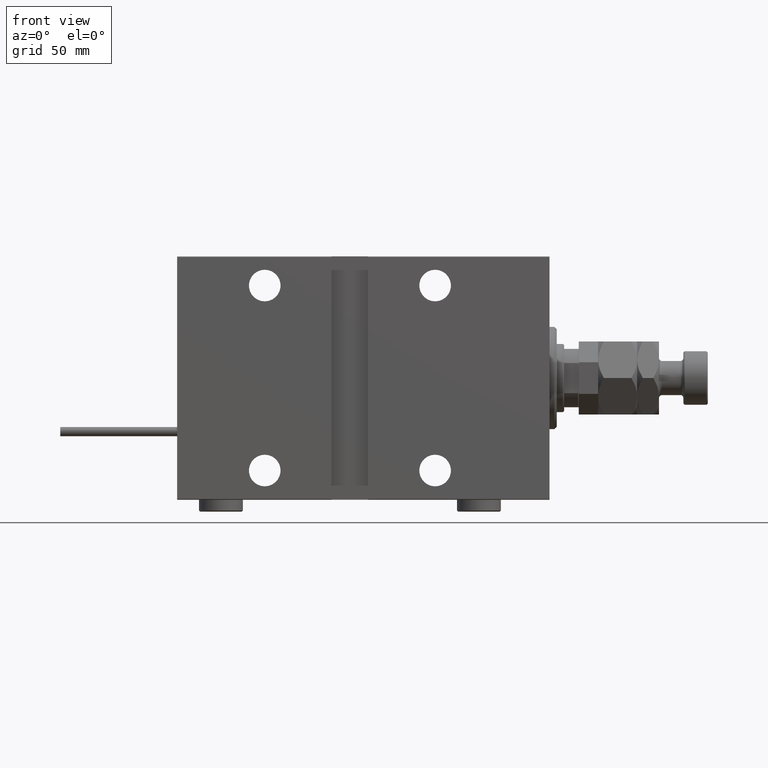
[diagram: clean part render]
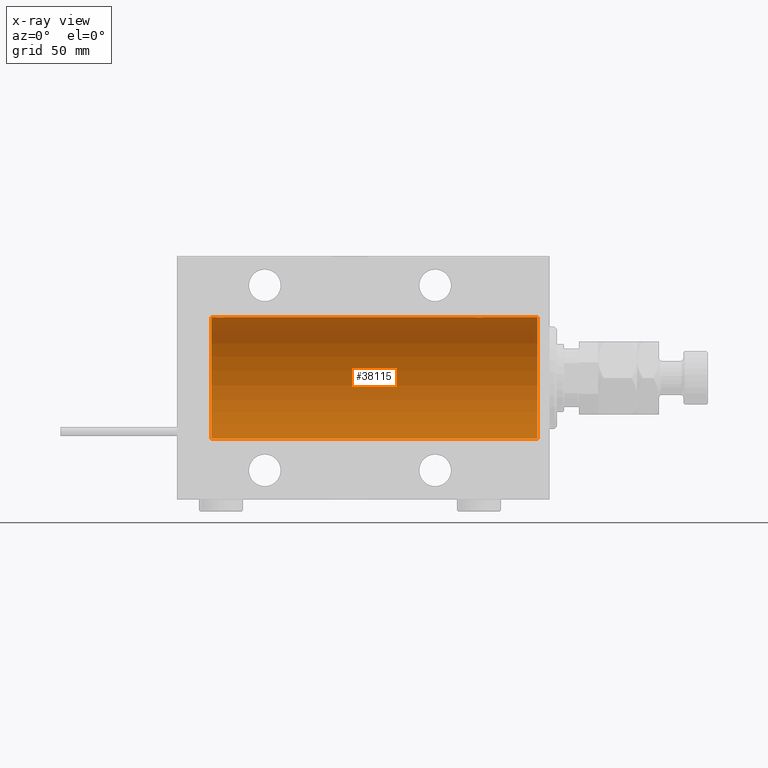
[diagram: x-ray — body ghosted, one internal face saturated and labeled with its STEP entity id]
A machine part, front view, then the same camera in x-ray: the body is ghosted and one INTERNAL B-rep face — a face not visible from any outside direction — is saturated and labeled: STEP entity #38115.
In plain terms, the highlighted cylindrical surface (partial cylindrical patch) has radius 25 mm, axis along (1, 0, -0).
Its self-contained STEP definition (entity closure, byte-faithful):
#744 = CARTESIAN_POINT ( 'NONE',  ( 29.16323589638542302, -2.500125740978195843, 24.87467329022545215 ) ) ;
#1243 = EDGE_LOOP ( 'NONE', ( #36611, #39696, #44153, #47120, #29771, #17389, #47085, #19458 ) ) ;
#1544 = CARTESIAN_POINT ( 'NONE',  ( 28.83293504821939734, -2.499872792855082793, 24.87469871246083031 ) ) ;
#1669 = VECTOR ( 'NONE', #15223, 1000.000000000000000 ) ;
#1812 = CARTESIAN_POINT ( 'NONE',  ( 30.65121133559111755, -1.884161199660622454, 24.92916496727982434 ) ) ;
#1930 = VECTOR ( 'NONE', #37958, 1000.000000000000000 ) ;
#2122 = CARTESIAN_POINT ( 'NONE',  ( 132.5000000000000000, -0.1631750940176186493, 25.00000000000001066 ) ) ;
#2387 = CARTESIAN_POINT ( 'NONE',  ( 134.1921165759419239, -2.371528299825747421, 24.88734287464370709 ) ) ;
#3184 = CARTESIAN_POINT ( 'NONE',  ( 137.4999999999999716, -0.3305063766663748903, 24.99999999999999289 ) ) ;
#3713 = CARTESIAN_POINT ( 'NONE',  ( 26.50000000000000711, -0.1631750940176204812, 25.00000000000000711 ) ) ;
#4842 = AXIS2_PLACEMENT_3D ( 'NONE', #30955, #39269, #7106 ) ;
#5025 = CARTESIAN_POINT ( 'NONE',  ( 28.35095609830903385, -2.419770561643910245, 24.88263927071751169 ) ) ;
#5064 = CARTESIAN_POINT ( 'NONE',  ( 133.1158761721353301, -1.651251241585103724, 24.94567559498349141 ) ) ;
#5289 = CARTESIAN_POINT ( 'NONE',  ( 30.98538033717094464, -1.528152964861315244, 24.95362559291378801 ) ) ;
#5433 = EDGE_CURVE ( 'NONE', #26948, #40290, #52471, .T. ) ;
#5835 = CARTESIAN_POINT ( 'NONE',  ( 30.52256774340189338, -1.989585286700249256, 24.92087098724766747 ) ) ;
#7021 = CYLINDRICAL_SURFACE ( 'NONE', #23906, 25.00000000000000000 ) ;
#7106 = DIRECTION ( 'NONE',  ( 0.000000000000000000, 0.000000000000000000, 1.000000000000000000 ) ) ;
#7200 = CARTESIAN_POINT ( 'NONE',  ( 137.4334935523974650, -0.6588655613945811895, 24.99312727339969697 ) ) ;
#9095 = CARTESIAN_POINT ( 'NONE',  ( 133.0125018416559328, -1.525407911884356205, 24.95379469572361586 ) ) ;
#9285 = EDGE_CURVE ( 'NONE', #32573, #15623, #40480, .T. ) ;
#9611 = CARTESIAN_POINT ( 'NONE',  ( 132.5158215994234752, -0.3254210271412208977, 24.99840249400844527 ) ) ;
#9711 = DIRECTION ( 'NONE',  ( -1.000000000000000000, -0.000000000000000000, -0.000000000000000000 ) ) ;
#10827 = VERTEX_POINT ( 'NONE', #32580 ) ;
#10981 = LINE ( 'NONE', #46431, #39452 ) ;
#12026 = CARTESIAN_POINT ( 'NONE',  ( 27.74616804575498108, -2.169003991399871989, 24.90589728951138326 ) ) ;
#13120 = CARTESIAN_POINT ( 'NONE',  ( 132.7523974898044798, -1.106703319666880958, 24.97594585958023217 ) ) ;
#14830 = CARTESIAN_POINT ( 'NONE',  ( 5.000000000000004441, 0.000000000000000000, 0.000000000000000000 ) ) ;
#14905 = VERTEX_POINT ( 'NONE', #46154 ) ;
#15084 = DIRECTION ( 'NONE',  ( -1.000000000000000000, -0.000000000000000000, -0.000000000000000000 ) ) ;
#15223 = DIRECTION ( 'NONE',  ( -1.000000000000000000, -0.000000000000000000, -0.000000000000000000 ) ) ;
#15249 = CARTESIAN_POINT ( 'NONE',  ( 136.5225677434018792, -1.989585286700252809, 24.92087098724766747 ) ) ;
#15623 = VERTEX_POINT ( 'NONE', #43588 ) ;
#15697 = DIRECTION ( 'NONE',  ( -1.000000000000000000, -0.000000000000000000, -0.000000000000000000 ) ) ;
#16033 = CARTESIAN_POINT ( 'NONE',  ( 26.75239748980449050, -1.106703319666882956, 24.97594585958023572 ) ) ;
#16819 = CARTESIAN_POINT ( 'NONE',  ( 26.82988709719075970, -1.252049606094339351, 24.96900299967627390 ) ) ;
#16960 = EDGE_CURVE ( 'NONE', #14905, #15623, #10981, .T. ) ;
#17070 = EDGE_CURVE ( 'NONE', #26948, #10827, #40243, .T. ) ;
#17389 = ORIENTED_EDGE ( 'NONE', *, *, #44361, .F. ) ;
#17885 = CARTESIAN_POINT ( 'NONE',  ( 29.32596570039459394, -2.484007091859766092, 24.87630842367763506 ) ) ;
#18321 = EDGE_CURVE ( 'NONE', #45668, #14905, #45064, .T. ) ;
#18454 = CARTESIAN_POINT ( 'NONE',  ( 134.3509560983090694, -2.419770561643906248, 24.88263927071751169 ) ) ;
#18720 = CARTESIAN_POINT ( 'NONE',  ( 134.8329350482193831, -2.499872792855079240, 24.87469871246083031 ) ) ;
#19458 = ORIENTED_EDGE ( 'NONE', *, *, #16960, .F. ) ;
#20849 = CARTESIAN_POINT ( 'NONE',  ( 26.62784030591392437, -0.8058335233485459659, 24.98746277938383287 ) ) ;
#21402 = CARTESIAN_POINT ( 'NONE',  ( 133.4746381775692043, -1.987446652080256948, 24.92104239223420592 ) ) ;
#21630 = CARTESIAN_POINT ( 'NONE',  ( 31.43349355239747567, -0.6588655613945917366, 24.99312727339970053 ) ) ;
#21845 = VECTOR ( 'NONE', #15697, 1000.000000000000000 ) ;
#21904 = CARTESIAN_POINT ( 'NONE',  ( 29.80435660916301899, -2.372734907014176553, 24.88722742718433878 ) ) ;
#22404 = CARTESIAN_POINT ( 'NONE',  ( 139.0000000000000000, 0.000000000000000000, 25.00000000000000000 ) ) ;
#23009 = CARTESIAN_POINT ( 'NONE',  ( 136.8818595414864205, -1.653834020452942477, 24.94550385189585029 ) ) ;
#23533 = EDGE_CURVE ( 'NONE', #45668, #49240, #40340, .T. ) ;
#23787 = CARTESIAN_POINT ( 'NONE',  ( 133.8896320349113580, -2.245863995402900049, 24.89899750494197050 ) ) ;
#23906 = AXIS2_PLACEMENT_3D ( 'NONE', #26846, #15084, #44005 ) ;
#24332 = CARTESIAN_POINT ( 'NONE',  ( 26.51582159942343608, -0.3254210271412222300, 24.99840249400844883 ) ) ;
#25087 = EDGE_CURVE ( 'NONE', #49240, #40290, #41465, .T. ) ;
#25120 = CARTESIAN_POINT ( 'NONE',  ( 31.50000000000000000, -6.390602579065537931E-15, 25.00000000000000000 ) ) ;
#25950 = CARTESIAN_POINT ( 'NONE',  ( 132.5798509077907283, -0.6480119923854213981, 24.99212088949391131 ) ) ;
#26030 = CARTESIAN_POINT ( 'NONE',  ( 139.0000000000000000, 3.061616997868383043E-15, -25.00000000000000000 ) ) ;
#26158 = CARTESIAN_POINT ( 'NONE',  ( 26.50000000000000355, -1.940558383798427991E-23, 25.00000000000000000 ) ) ;
#26189 = CARTESIAN_POINT ( 'NONE',  ( 31.24606379094066000, -1.109818057797419932, 24.97580694515541921 ) ) ;
#26846 = CARTESIAN_POINT ( 'NONE',  ( 139.0000000000000000, 0.000000000000000000, 0.000000000000000000 ) ) ;
#26948 = VERTEX_POINT ( 'NONE', #26158 ) ;
#27033 = CARTESIAN_POINT ( 'NONE',  ( 136.1072384583841028, -2.247417070759893942, 24.89885693081946627 ) ) ;
#27807 = CARTESIAN_POINT ( 'NONE',  ( 136.9853803371709375, -1.528152964861297258, 24.95362559291378446 ) ) ;
#28345 = CARTESIAN_POINT ( 'NONE',  ( 27.88963203491136156, -2.245863995402901381, 24.89899750494197050 ) ) ;
#29402 = CARTESIAN_POINT ( 'NONE',  ( 28.19211657594194520, -2.371528299825748309, 24.88734287464370709 ) ) ;
#29771 = ORIENTED_EDGE ( 'NONE', *, *, #17070, .T. ) ;
#30200 = CARTESIAN_POINT ( 'NONE',  ( 31.49999999999997158, -0.3305063766663704494, 25.00000000000000000 ) ) ;
#30626 = DIRECTION ( 'NONE',  ( -1.000000000000000000, 0.000000000000000000, 0.000000000000000000 ) ) ;
#30781 = CARTESIAN_POINT ( 'NONE',  ( 137.2460637909406955, -1.109818057797409718, 24.97580694515542632 ) ) ;
#30955 = CARTESIAN_POINT ( 'NONE',  ( 139.0000000000000000, 0.000000000000000000, 0.000000000000000000 ) ) ;
#31043 = CARTESIAN_POINT ( 'NONE',  ( 134.6705231988572962, -2.483544361357268304, 24.87635491893501793 ) ) ;
#31569 = CARTESIAN_POINT ( 'NONE',  ( 135.1632358963854301, -2.500125740978193178, 24.87467329022544504 ) ) ;
#31658 = FACE_OUTER_BOUND ( 'NONE', #1243, .T. ) ;
#32573 = VERTEX_POINT ( 'NONE', #49684 ) ;
#32580 = CARTESIAN_POINT ( 'NONE',  ( 31.50000000000000000, -6.390602579065537931E-15, 25.00000000000000000 ) ) ;
#32820 = CARTESIAN_POINT ( 'NONE',  ( 139.0000000000000000, 3.061616997868383043E-15, -25.00000000000000000 ) ) ;
#33166 = CARTESIAN_POINT ( 'NONE',  ( 27.01250184165601453, -1.525407911884366863, 24.95379469572361941 ) ) ;
#33467 = CARTESIAN_POINT ( 'NONE',  ( 132.6278403059139634, -0.8058335233485443005, 24.98746277938383287 ) ) ;
#33941 = LINE ( 'NONE', #22404, #1930 ) ;
#34620 = AXIS2_PLACEMENT_3D ( 'NONE', #14830, #30626, #51836 ) ;
#35061 = CARTESIAN_POINT ( 'NONE',  ( 135.3259657003945620, -2.484007091859763872, 24.87630842367762796 ) ) ;
#35845 = CARTESIAN_POINT ( 'NONE',  ( 137.5000000000000000, 1.404322005998729010E-15, 25.00000000000000000 ) ) ;
#36611 = ORIENTED_EDGE ( 'NONE', *, *, #18321, .F. ) ;
#37326 = CARTESIAN_POINT ( 'NONE',  ( 5.000000000000004441, 0.000000000000000000, 25.00000000000000000 ) ) ;
#37749 = CARTESIAN_POINT ( 'NONE',  ( 133.7461680457549846, -2.169003991399866216, 24.90589728951138682 ) ) ;
#37958 = DIRECTION ( 'NONE',  ( -1.000000000000000000, -0.000000000000000000, -0.000000000000000000 ) ) ;
#38115 = ADVANCED_FACE ( 'NONE', ( #31658 ), #7021, .F. ) ;
#38256 = CARTESIAN_POINT ( 'NONE',  ( 31.16827641493957657, -1.255214705003185438, 24.96884293994578385 ) ) ;
#39269 = DIRECTION ( 'NONE',  ( -1.000000000000000000, 0.000000000000000000, 0.000000000000000000 ) ) ;
#39452 = VECTOR ( 'NONE', #9711, 1000.000000000000000 ) ;
#39696 = ORIENTED_EDGE ( 'NONE', *, *, #23533, .T. ) ;
#39893 = CARTESIAN_POINT ( 'NONE',  ( 135.8043566091630510, -2.372734907014173000, 24.88722742718433878 ) ) ;
#40243 = B_SPLINE_CURVE_WITH_KNOTS ( 'NONE', 3,
 ( #40418, #3713, #24332, #52787, #20849, #16033, #16819, #33166, #48745, #44986, #49548, #12026, #28345, #29402, #5025, #45504, #1544, #744, #17885, #50607, #21904, #46301, #42556, #5835, #1812, #42011, #5289, #38256, #26189, #21630, #30200, #25120 ),
 .UNSPECIFIED., .F., .F.,
 ( 4, 2, 2, 2, 2, 2, 2, 2, 2, 2, 2, 2, 2, 2, 2, 4 ),
 ( 0.007821024441662254717, 0.008309723826317859385, 0.008798423210973464054, 0.009287122595629068722, 0.009775821980284673390, 0.01026452136494027806, 0.01075322074959588099, 0.01124192013425148566, 0.01173061951890709033, 0.01221931890356269500, 0.01270801828821829967, 0.01319671767287390260, 0.01368541705752950727, 0.01417411644218511194, 0.01466281582684071660, 0.01564021459615192594 ),
 .UNSPECIFIED. ) ;
#40290 = VERTEX_POINT ( 'NONE', #37326 ) ;
#40340 = LINE ( 'NONE', #32820, #21845 ) ;
#40418 = CARTESIAN_POINT ( 'NONE',  ( 26.50000000000000355, -1.940558383798427991E-23, 25.00000000000000000 ) ) ;
#40480 = B_SPLINE_CURVE_WITH_KNOTS ( 'NONE', 3,
 ( #46338, #2122, #9611, #25950, #33467, #13120, #45815, #9095, #5064, #41787, #21402, #37749, #23787, #2387, #18454, #31043, #18720, #31569, #35061, #51729, #39893, #27033, #47693, #15249, #43123, #23009, #27807, #52243, #30781, #7200, #3184, #35845 ),
 .UNSPECIFIED., .F., .F.,
 ( 4, 2, 2, 2, 2, 2, 2, 2, 2, 2, 2, 2, 2, 2, 2, 4 ),
 ( 0.007821024441662296350, 0.008309723826317906223, 0.008798423210973516095, 0.009287122595629124233, 0.009775821980284732371, 0.01026452136494034224, 0.01075322074959595212, 0.01124192013425156025, 0.01173061951890716839, 0.01221931890356277826, 0.01270801828821838814, 0.01319671767287399627, 0.01368541705752960788, 0.01417411644218521602, 0.01466281582684082589, 0.01564021459615201268 ),
 .UNSPECIFIED. ) ;
#41465 = CIRCLE ( 'NONE', #34620, 25.00000000000000000 ) ;
#41787 = CARTESIAN_POINT ( 'NONE',  ( 133.3461666385066167, -1.881857718844717642, 24.92933960374833546 ) ) ;
#42011 = CARTESIAN_POINT ( 'NONE',  ( 30.88185954148645251, -1.653834020452943809, 24.94550385189585029 ) ) ;
#42556 = CARTESIAN_POINT ( 'NONE',  ( 30.25084023924054932, -2.170728182476723500, 24.90574631553725027 ) ) ;
#43123 = CARTESIAN_POINT ( 'NONE',  ( 136.6512113355911708, -1.884161199660621344, 24.92916496727982789 ) ) ;
#43588 = CARTESIAN_POINT ( 'NONE',  ( 137.5000000000000000, 1.404322005998729010E-15, 25.00000000000000000 ) ) ;
#44005 = DIRECTION ( 'NONE',  ( 0.000000000000000000, 0.000000000000000000, 1.000000000000000000 ) ) ;
#44153 = ORIENTED_EDGE ( 'NONE', *, *, #25087, .T. ) ;
#44361 = EDGE_CURVE ( 'NONE', #32573, #10827, #33941, .T. ) ;
#44986 = CARTESIAN_POINT ( 'NONE',  ( 27.34616663850662377, -1.881857718844717642, 24.92933960374833902 ) ) ;
#45064 = CIRCLE ( 'NONE', #4842, 25.00000000000000000 ) ;
#45504 = CARTESIAN_POINT ( 'NONE',  ( 28.67052319885730682, -2.483544361357271857, 24.87635491893501793 ) ) ;
#45668 = VERTEX_POINT ( 'NONE', #26030 ) ;
#45815 = CARTESIAN_POINT ( 'NONE',  ( 132.8298870971907490, -1.252049606094326695, 24.96900299967627390 ) ) ;
#46154 = CARTESIAN_POINT ( 'NONE',  ( 139.0000000000000000, 0.000000000000000000, 25.00000000000000000 ) ) ;
#46301 = CARTESIAN_POINT ( 'NONE',  ( 30.10723845838409929, -2.247417070759899271, 24.89885693081946272 ) ) ;
#46338 = CARTESIAN_POINT ( 'NONE',  ( 132.5000000000000000, -1.941505016884693205E-23, 25.00000000000000000 ) ) ;
#46431 = CARTESIAN_POINT ( 'NONE',  ( 139.0000000000000000, 0.000000000000000000, 25.00000000000000000 ) ) ;
#47085 = ORIENTED_EDGE ( 'NONE', *, *, #9285, .T. ) ;
#47120 = ORIENTED_EDGE ( 'NONE', *, *, #5433, .F. ) ;
#47693 = CARTESIAN_POINT ( 'NONE',  ( 136.2508402392405173, -2.170728182476725276, 24.90574631553724672 ) ) ;
#48745 = CARTESIAN_POINT ( 'NONE',  ( 27.11587617213529100, -1.651251241585102614, 24.94567559498349141 ) ) ;
#49240 = VERTEX_POINT ( 'NONE', #49707 ) ;
#49548 = CARTESIAN_POINT ( 'NONE',  ( 27.47463817756919369, -1.987446652080264720, 24.92104239223420592 ) ) ;
#49684 = CARTESIAN_POINT ( 'NONE',  ( 132.5000000000000000, -1.941505016884693205E-23, 25.00000000000000000 ) ) ;
#49707 = CARTESIAN_POINT ( 'NONE',  ( 5.000000000000004441, 3.061616997868383043E-15, -25.00000000000000000 ) ) ;
#50607 = CARTESIAN_POINT ( 'NONE',  ( 29.64560666148631540, -2.420689345803762382, 24.88254961038873958 ) ) ;
#51729 = CARTESIAN_POINT ( 'NONE',  ( 135.6456066614862834, -2.420689345803761938, 24.88254961038872892 ) ) ;
#51836 = DIRECTION ( 'NONE',  ( 0.000000000000000000, 0.000000000000000000, 1.000000000000000000 ) ) ;
#51968 = CARTESIAN_POINT ( 'NONE',  ( 139.0000000000000000, 0.000000000000000000, 25.00000000000000000 ) ) ;
#52243 = CARTESIAN_POINT ( 'NONE',  ( 137.1682764149395837, -1.255214705003166564, 24.96884293994578385 ) ) ;
#52471 = LINE ( 'NONE', #51968, #1669 ) ;
#52787 = CARTESIAN_POINT ( 'NONE',  ( 26.57985090779070703, -0.6480119923854221753, 24.99212088949390420 ) ) ;